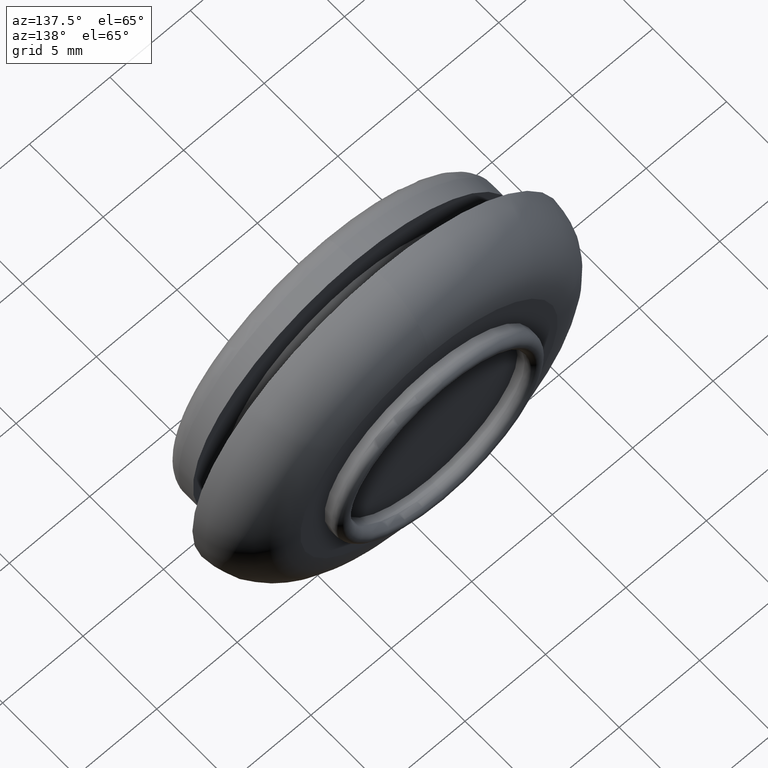
[diagram: clean part render]
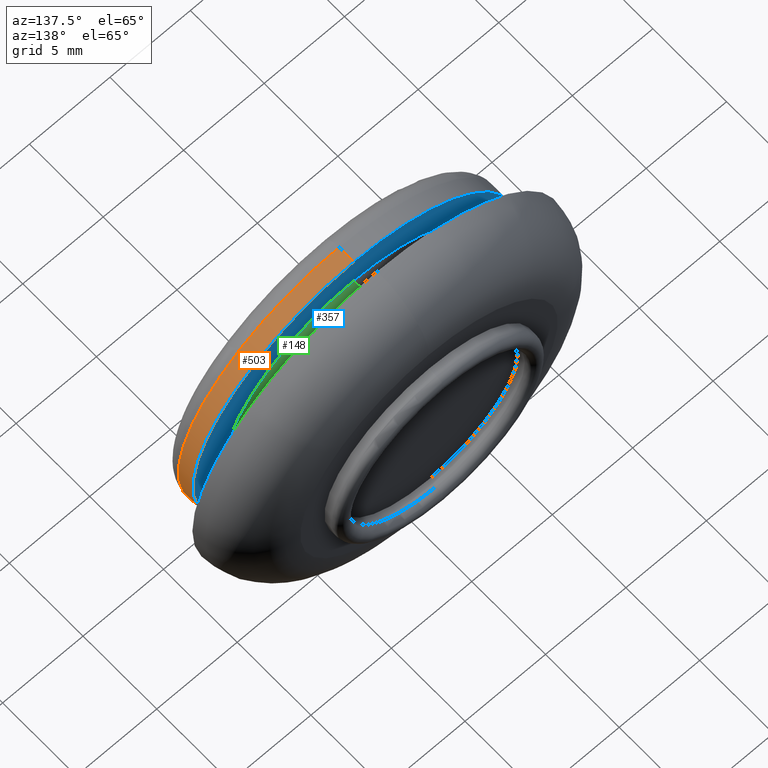
[diagram: same view with three faces highlighted in distinct colors, each labeled with its STEP entity id]
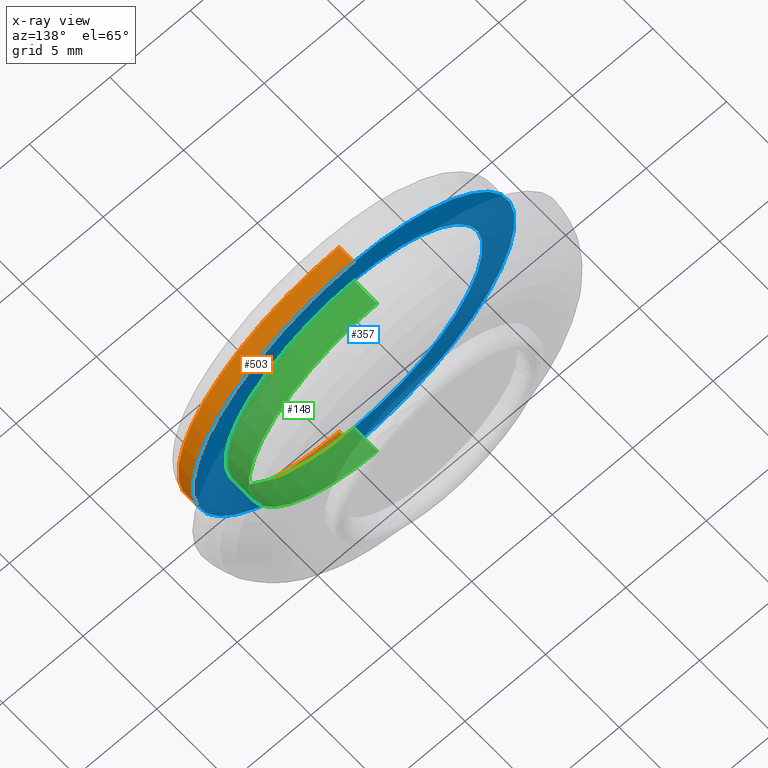
[diagram: x-ray of the same camera — body ghosted, the three highlighted faces saturated]
A machine part, auxiliary view with three faces highlighted in distinct colors.
The next image is the same camera in x-ray (body ghosted, the three faces saturated) — at least one of them is partly hidden behind the body in this view.
Their STEP definitions:

[orange] entity #503 — the highlighted cylindrical surface (partial cylindrical patch) has radius 10 mm, axis along (0, -1, 0).
#1 = VERTEX_POINT ( 'NONE', #2 ) ;
#2 = CARTESIAN_POINT ( 'NONE',  ( 0.0000000000000000000, 1.000000000000000000, -10.00000000000000000 ) ) ;
#53 = DIRECTION ( 'NONE',  ( 0.0000000000000000000, 0.0000000000000000000, -1.000000000000000000 ) ) ;
#98 = DIRECTION ( 'NONE',  ( 0.0000000000000000000, -1.000000000000000000, 0.0000000000000000000 ) ) ;
#127 = EDGE_CURVE ( 'NONE', #1, #272, #297, .T. ) ;
#138 = DIRECTION ( 'NONE',  ( 0.0000000000000000000, 0.0000000000000000000, -1.000000000000000000 ) ) ;
#141 = LINE ( 'NONE', #643, #431 ) ;
#147 = EDGE_CURVE ( 'NONE', #382, #272, #141, .T. ) ;
#152 = CARTESIAN_POINT ( 'NONE',  ( 0.0000000000000000000, 2.000000000000000000, -10.00000000000000000 ) ) ;
#198 = CARTESIAN_POINT ( 'NONE',  ( 1.224646799147353300E-015, 1.000000000000000000, 10.00000000000000000 ) ) ;
#206 = ORIENTED_EDGE ( 'NONE', *, *, #147, .T. ) ;
#208 = AXIS2_PLACEMENT_3D ( 'NONE', #284, #226, #533 ) ;
#214 = EDGE_CURVE ( 'NONE', #614, #382, #532, .T. ) ;
#216 = LINE ( 'NONE', #238, #491 ) ;
#226 = DIRECTION ( 'NONE',  ( 0.0000000000000000000, -1.000000000000000000, 0.0000000000000000000 ) ) ;
#230 = EDGE_LOOP ( 'NONE', ( #506, #206, #602, #524 ) ) ;
#238 = CARTESIAN_POINT ( 'NONE',  ( 0.0000000000000000000, 0.0000000000000000000, -10.00000000000000000 ) ) ;
#272 = VERTEX_POINT ( 'NONE', #198 ) ;
#284 = CARTESIAN_POINT ( 'NONE',  ( 0.0000000000000000000, 2.000000000000000000, -3.061515884555945100E-016 ) ) ;
#297 = CIRCLE ( 'NONE', #527, 10.00000000000000000 ) ;
#339 = CARTESIAN_POINT ( 'NONE',  ( 0.0000000000000000000, 0.0000000000000000000, -3.061515884555945100E-016 ) ) ;
#349 = FACE_OUTER_BOUND ( 'NONE', #230, .T. ) ;
#382 = VERTEX_POINT ( 'NONE', #426 ) ;
#426 = CARTESIAN_POINT ( 'NONE',  ( 1.224646799147353300E-015, 2.000000000000000000, 10.00000000000000000 ) ) ;
#431 = VECTOR ( 'NONE', #587, 1000.000000000000000 ) ;
#454 = CARTESIAN_POINT ( 'NONE',  ( 0.0000000000000000000, 1.000000000000000000, -3.061515884555945100E-016 ) ) ;
#459 = EDGE_CURVE ( 'NONE', #614, #1, #216, .T. ) ;
#463 = CYLINDRICAL_SURFACE ( 'NONE', #494, 10.00000000000000000 ) ;
#491 = VECTOR ( 'NONE', #585, 1000.000000000000000 ) ;
#494 = AXIS2_PLACEMENT_3D ( 'NONE', #339, #625, #138 ) ;
#503 = ADVANCED_FACE ( 'NONE', ( #349 ), #463, .T. ) ;
#506 = ORIENTED_EDGE ( 'NONE', *, *, #214, .T. ) ;
#524 = ORIENTED_EDGE ( 'NONE', *, *, #459, .F. ) ;
#527 = AXIS2_PLACEMENT_3D ( 'NONE', #454, #98, #53 ) ;
#532 = CIRCLE ( 'NONE', #208, 10.00000000000000000 ) ;
#533 = DIRECTION ( 'NONE',  ( 0.0000000000000000000, 0.0000000000000000000, -1.000000000000000000 ) ) ;
#585 = DIRECTION ( 'NONE',  ( 0.0000000000000000000, -1.000000000000000000, 0.0000000000000000000 ) ) ;
#587 = DIRECTION ( 'NONE',  ( 0.0000000000000000000, -1.000000000000000000, 0.0000000000000000000 ) ) ;
#602 = ORIENTED_EDGE ( 'NONE', *, *, #127, .F. ) ;
#614 = VERTEX_POINT ( 'NONE', #152 ) ;
#625 = DIRECTION ( 'NONE',  ( 0.0000000000000000000, -1.000000000000000000, 0.0000000000000000000 ) ) ;
#643 = CARTESIAN_POINT ( 'NONE',  ( 1.224646799147353300E-015, 0.0000000000000000000, 10.00000000000000000 ) ) ;

[blue] entity #357 — the highlighted planar face has unit normal (0, -1, 0).
#15 = FACE_BOUND ( 'NONE', #56, .T. ) ;
#17 = AXIS2_PLACEMENT_3D ( 'NONE', #545, #392, #440 ) ;
#47 = AXIS2_PLACEMENT_3D ( 'NONE', #244, #594, #298 ) ;
#56 = EDGE_LOOP ( 'NONE', ( #207, #652 ) ) ;
#61 = FACE_OUTER_BOUND ( 'NONE', #529, .T. ) ;
#115 = EDGE_CURVE ( 'NONE', #312, #649, #158, .T. ) ;
#152 = CARTESIAN_POINT ( 'NONE',  ( 0.0000000000000000000, 2.000000000000000000, -10.00000000000000000 ) ) ;
#158 = CIRCLE ( 'NONE', #465, 8.000000000000000000 ) ;
#205 = CIRCLE ( 'NONE', #47, 10.00000000000000000 ) ;
#207 = ORIENTED_EDGE ( 'NONE', *, *, #374, .T. ) ;
#208 = AXIS2_PLACEMENT_3D ( 'NONE', #284, #226, #533 ) ;
#214 = EDGE_CURVE ( 'NONE', #614, #382, #532, .T. ) ;
#226 = DIRECTION ( 'NONE',  ( 0.0000000000000000000, -1.000000000000000000, 0.0000000000000000000 ) ) ;
#234 = PLANE ( 'NONE',  #17 ) ;
#244 = CARTESIAN_POINT ( 'NONE',  ( 0.0000000000000000000, 2.000000000000000000, -3.061515884555945100E-016 ) ) ;
#270 = CIRCLE ( 'NONE', #633, 8.000000000000000000 ) ;
#284 = CARTESIAN_POINT ( 'NONE',  ( 0.0000000000000000000, 2.000000000000000000, -3.061515884555945100E-016 ) ) ;
#290 = CARTESIAN_POINT ( 'NONE',  ( 9.797174393178825700E-016, 2.000000000000000000, 8.000000000000000000 ) ) ;
#298 = DIRECTION ( 'NONE',  ( 0.0000000000000000000, 0.0000000000000000000, -1.000000000000000000 ) ) ;
#312 = VERTEX_POINT ( 'NONE', #290 ) ;
#329 = DIRECTION ( 'NONE',  ( 0.0000000000000000000, -1.000000000000000000, 0.0000000000000000000 ) ) ;
#357 = ADVANCED_FACE ( 'NONE', ( #61, #15 ), #234, .F. ) ;
#364 = CARTESIAN_POINT ( 'NONE',  ( 0.0000000000000000000, 2.000000000000000000, -3.061515884555945100E-016 ) ) ;
#374 = EDGE_CURVE ( 'NONE', #649, #312, #270, .T. ) ;
#382 = VERTEX_POINT ( 'NONE', #426 ) ;
#392 = DIRECTION ( 'NONE',  ( 0.0000000000000000000, -1.000000000000000000, 0.0000000000000000000 ) ) ;
#426 = CARTESIAN_POINT ( 'NONE',  ( 1.224646799147353300E-015, 2.000000000000000000, 10.00000000000000000 ) ) ;
#440 = DIRECTION ( 'NONE',  ( 0.0000000000000000000, 0.0000000000000000000, -1.000000000000000000 ) ) ;
#465 = AXIS2_PLACEMENT_3D ( 'NONE', #364, #650, #601 ) ;
#473 = ORIENTED_EDGE ( 'NONE', *, *, #214, .F. ) ;
#479 = DIRECTION ( 'NONE',  ( 0.0000000000000000000, 0.0000000000000000000, -1.000000000000000000 ) ) ;
#529 = EDGE_LOOP ( 'NONE', ( #473, #571 ) ) ;
#532 = CIRCLE ( 'NONE', #208, 10.00000000000000000 ) ;
#533 = DIRECTION ( 'NONE',  ( 0.0000000000000000000, 0.0000000000000000000, -1.000000000000000000 ) ) ;
#545 = CARTESIAN_POINT ( 'NONE',  ( 0.0000000000000000000, 2.000000000000000000, 8.000000000000000000 ) ) ;
#561 = CARTESIAN_POINT ( 'NONE',  ( 0.0000000000000000000, 2.000000000000000000, -8.000000000000000000 ) ) ;
#569 = EDGE_CURVE ( 'NONE', #382, #614, #205, .T. ) ;
#571 = ORIENTED_EDGE ( 'NONE', *, *, #569, .F. ) ;
#594 = DIRECTION ( 'NONE',  ( 0.0000000000000000000, -1.000000000000000000, 0.0000000000000000000 ) ) ;
#601 = DIRECTION ( 'NONE',  ( 0.0000000000000000000, 0.0000000000000000000, -1.000000000000000000 ) ) ;
#614 = VERTEX_POINT ( 'NONE', #152 ) ;
#618 = CARTESIAN_POINT ( 'NONE',  ( 0.0000000000000000000, 2.000000000000000000, -3.061515884555945100E-016 ) ) ;
#633 = AXIS2_PLACEMENT_3D ( 'NONE', #618, #329, #479 ) ;
#649 = VERTEX_POINT ( 'NONE', #561 ) ;
#650 = DIRECTION ( 'NONE',  ( 0.0000000000000000000, -1.000000000000000000, 0.0000000000000000000 ) ) ;
#652 = ORIENTED_EDGE ( 'NONE', *, *, #115, .T. ) ;

[green] entity #148 — the highlighted cylindrical surface (partial cylindrical patch) has radius 8 mm, axis along (0, -1, 0).
#3 = DIRECTION ( 'NONE',  ( 0.0000000000000000000, -1.000000000000000000, 0.0000000000000000000 ) ) ;
#23 = CARTESIAN_POINT ( 'NONE',  ( 0.0000000000000000000, 0.0000000000000000000, -8.000000000000000000 ) ) ;
#39 = CARTESIAN_POINT ( 'NONE',  ( 0.0000000000000000000, 3.600000000000000100, -8.000000000000000000 ) ) ;
#43 = AXIS2_PLACEMENT_3D ( 'NONE', #462, #544, #57 ) ;
#49 = EDGE_CURVE ( 'NONE', #497, #312, #546, .T. ) ;
#57 = DIRECTION ( 'NONE',  ( 0.0000000000000000000, 0.0000000000000000000, -1.000000000000000000 ) ) ;
#103 = ORIENTED_EDGE ( 'NONE', *, *, #624, .T. ) ;
#105 = VECTOR ( 'NONE', #525, 1000.000000000000000 ) ;
#145 = AXIS2_PLACEMENT_3D ( 'NONE', #309, #3, #245 ) ;
#148 = ADVANCED_FACE ( 'NONE', ( #551 ), #264, .T. ) ;
#188 = EDGE_LOOP ( 'NONE', ( #103, #451, #401, #316 ) ) ;
#245 = DIRECTION ( 'NONE',  ( 0.0000000000000000000, 0.0000000000000000000, -1.000000000000000000 ) ) ;
#264 = CYLINDRICAL_SURFACE ( 'NONE', #43, 8.000000000000000000 ) ;
#266 = VECTOR ( 'NONE', #541, 1000.000000000000000 ) ;
#270 = CIRCLE ( 'NONE', #633, 8.000000000000000000 ) ;
#277 = CIRCLE ( 'NONE', #145, 8.000000000000000000 ) ;
#290 = CARTESIAN_POINT ( 'NONE',  ( 9.797174393178825700E-016, 2.000000000000000000, 8.000000000000000000 ) ) ;
#309 = CARTESIAN_POINT ( 'NONE',  ( 0.0000000000000000000, 3.600000000000000100, -3.061515884555945100E-016 ) ) ;
#312 = VERTEX_POINT ( 'NONE', #290 ) ;
#316 = ORIENTED_EDGE ( 'NONE', *, *, #437, .F. ) ;
#329 = DIRECTION ( 'NONE',  ( 0.0000000000000000000, -1.000000000000000000, 0.0000000000000000000 ) ) ;
#346 = VERTEX_POINT ( 'NONE', #39 ) ;
#374 = EDGE_CURVE ( 'NONE', #649, #312, #270, .T. ) ;
#401 = ORIENTED_EDGE ( 'NONE', *, *, #374, .F. ) ;
#437 = EDGE_CURVE ( 'NONE', #346, #649, #508, .T. ) ;
#446 = CARTESIAN_POINT ( 'NONE',  ( 9.797174393178825700E-016, 3.600000000000000100, 8.000000000000000000 ) ) ;
#451 = ORIENTED_EDGE ( 'NONE', *, *, #49, .T. ) ;
#462 = CARTESIAN_POINT ( 'NONE',  ( 0.0000000000000000000, 0.0000000000000000000, -3.061515884555945100E-016 ) ) ;
#479 = DIRECTION ( 'NONE',  ( 0.0000000000000000000, 0.0000000000000000000, -1.000000000000000000 ) ) ;
#497 = VERTEX_POINT ( 'NONE', #446 ) ;
#508 = LINE ( 'NONE', #23, #105 ) ;
#525 = DIRECTION ( 'NONE',  ( 0.0000000000000000000, -1.000000000000000000, 0.0000000000000000000 ) ) ;
#541 = DIRECTION ( 'NONE',  ( 0.0000000000000000000, -1.000000000000000000, 0.0000000000000000000 ) ) ;
#544 = DIRECTION ( 'NONE',  ( 0.0000000000000000000, -1.000000000000000000, 0.0000000000000000000 ) ) ;
#546 = LINE ( 'NONE', #627, #266 ) ;
#551 = FACE_OUTER_BOUND ( 'NONE', #188, .T. ) ;
#561 = CARTESIAN_POINT ( 'NONE',  ( 0.0000000000000000000, 2.000000000000000000, -8.000000000000000000 ) ) ;
#618 = CARTESIAN_POINT ( 'NONE',  ( 0.0000000000000000000, 2.000000000000000000, -3.061515884555945100E-016 ) ) ;
#624 = EDGE_CURVE ( 'NONE', #346, #497, #277, .T. ) ;
#627 = CARTESIAN_POINT ( 'NONE',  ( 9.797174393178825700E-016, 0.0000000000000000000, 8.000000000000000000 ) ) ;
#633 = AXIS2_PLACEMENT_3D ( 'NONE', #618, #329, #479 ) ;
#649 = VERTEX_POINT ( 'NONE', #561 ) ;